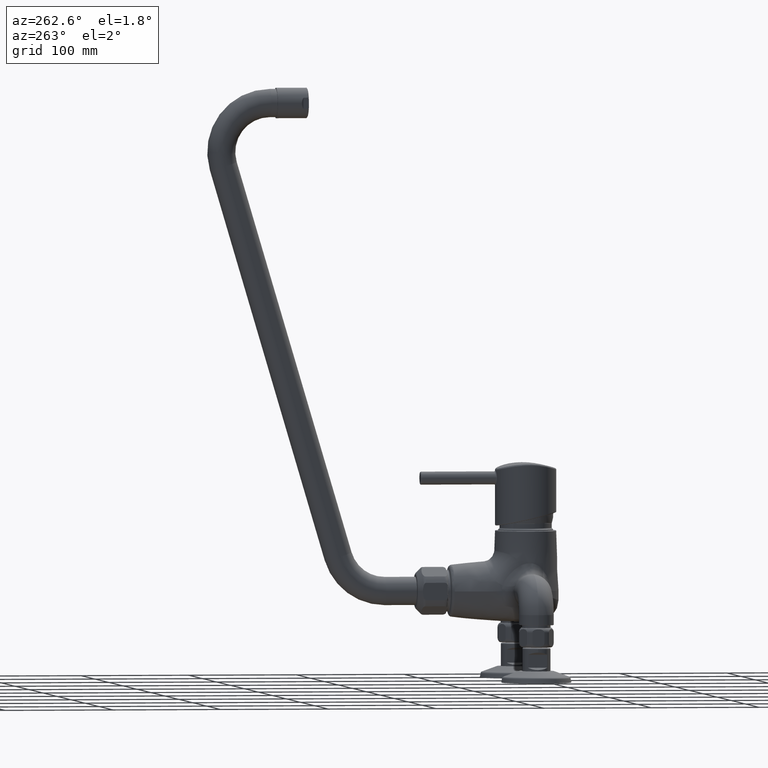
[diagram: clean part render]
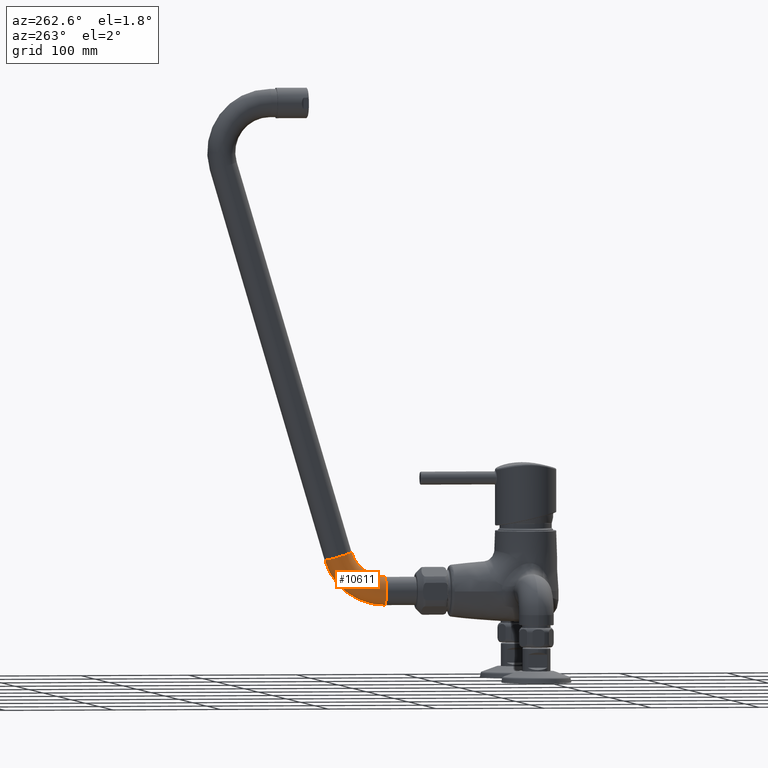
[diagram: same view with one face highlighted and labeled with its STEP entity id]
A machine part, auxiliary view. The second image highlights one B-rep face of the part: STEP entity #10611.
In plain terms, the highlighted toroidal blend (fillet) surface has major radius 45 mm and minor (blend) radius 13 mm.
Its self-contained STEP definition (entity closure, byte-faithful):
#3942=CARTESIAN_POINT('',(0.E0,1.83E2,4.5E1));
#3943=DIRECTION('',(1.E0,0.E0,0.E0));
#3944=DIRECTION('',(0.E0,0.E0,-1.E0));
#3945=AXIS2_PLACEMENT_3D('',#3942,#3943,#3944);
#3947=CARTESIAN_POINT('',(0.E0,1.83E2,0.E0));
#3948=DIRECTION('',(0.E0,1.E0,0.E0));
#3949=DIRECTION('',(0.E0,0.E0,-1.E0));
#3950=AXIS2_PLACEMENT_3D('',#3947,#3948,#3949);
#3952=CARTESIAN_POINT('',(0.E0,1.83E2,4.5E1));
#3953=DIRECTION('',(1.E0,0.E0,0.E0));
#3954=DIRECTION('',(0.E0,0.E0,-1.E0));
#3955=AXIS2_PLACEMENT_3D('',#3952,#3953,#3954);
#3957=CARTESIAN_POINT('',(0.E0,2.261468880691E2,3.221930948832E1));
#3958=DIRECTION('',(0.E0,2.840153447039E-1,9.588197348682E-1));
#3959=DIRECTION('',(0.E0,9.588197348682E-1,-2.840153447039E-1));
#3960=AXIS2_PLACEMENT_3D('',#3957,#3958,#3959);
#4574=CARTESIAN_POINT('',(0.E0,1.83E2,-1.3E1));
#4575=CARTESIAN_POINT('',(0.E0,1.83E2,1.3E1));
#4576=VERTEX_POINT('',#4574);
#4577=VERTEX_POINT('',#4575);
#4578=CARTESIAN_POINT('',(0.E0,2.386115446224E2,2.852711000717E1));
#4579=CARTESIAN_POINT('',(0.E0,2.136822315158E2,3.591150896947E1));
#4580=VERTEX_POINT('',#4578);
#4581=VERTEX_POINT('',#4579);
#10599=CARTESIAN_POINT('',(0.E0,1.83E2,4.5E1));
#10600=DIRECTION('',(1.E0,0.E0,0.E0));
#10601=DIRECTION('',(0.E0,0.E0,1.E0));
#10602=AXIS2_PLACEMENT_3D('',#10599,#10600,#10601);
#10603=TOROIDAL_SURFACE('',#10602,4.5E1,1.3E1);
#10604=ORIENTED_EDGE('',*,*,#10528,.F.);
#10605=ORIENTED_EDGE('',*,*,#10582,.T.);
#10607=ORIENTED_EDGE('',*,*,#10606,.T.);
#10608=ORIENTED_EDGE('',*,*,#10578,.F.);
#10609=EDGE_LOOP('',(#10604,#10605,#10607,#10608));
#10610=FACE_OUTER_BOUND('',#10609,.F.);
#3946=CIRCLE('',#3945,3.2E1);
#3951=CIRCLE('',#3950,1.3E1);
#3956=CIRCLE('',#3955,5.8E1);
#3961=CIRCLE('',#3960,1.3E1);
#10528=EDGE_CURVE('',#4576,#4577,#3951,.T.);
#10578=EDGE_CURVE('',#4577,#4581,#3946,.T.);
#10582=EDGE_CURVE('',#4576,#4580,#3956,.T.);
#10606=EDGE_CURVE('',#4580,#4581,#3961,.T.);
#10611=ADVANCED_FACE('',(#10610),#10603,.T.);